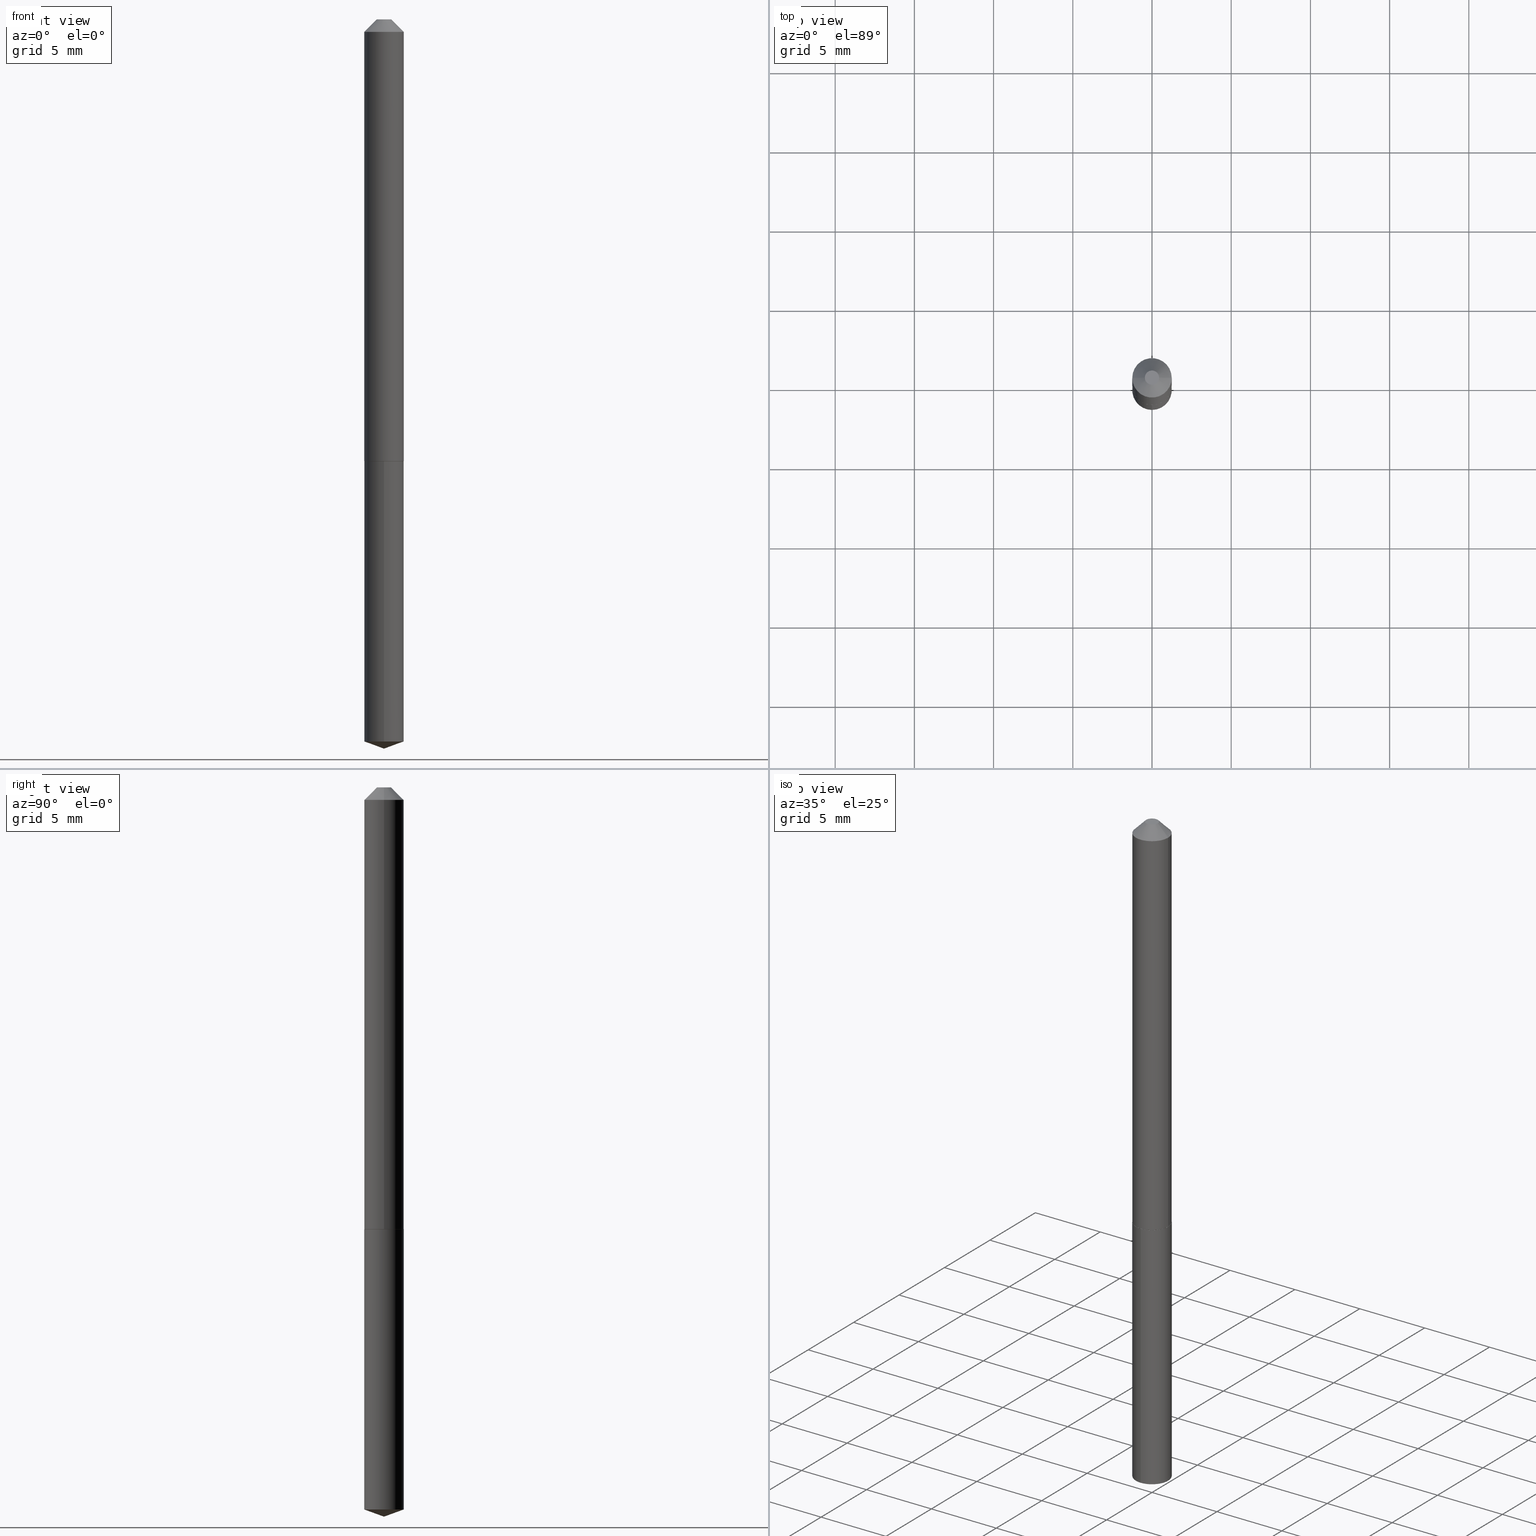
[diagram: canonical four-view strip — front | top / right | iso, engineering-drawing reading convention]
A machine part, canonical four-view strip (front | top / right | iso — engineering-drawing reading convention). The complete STEP part file that produces these views, byte-faithful:
ISO-10303-21;
HEADER;
FILE_DESCRIPTION (( 'STEP AP203' ),
    '1' );
FILE_NAME ('56249.STEP',
    '2024-04-22T21:28:00',
    ( '' ),
    ( '' ),
    'SwSTEP 2.0',
    'SolidWorks 2023',
    '' );
FILE_SCHEMA (( 'CONFIG_CONTROL_DESIGN' ));
ENDSEC;

DATA;
#1 = AXIS2_PLACEMENT_3D ( 'NONE', #103, #55, #222 ) ;
#2 = EDGE_LOOP ( 'NONE', ( #152, #374 ) ) ;
#3 = CARTESIAN_POINT ( 'NONE',  ( 0.04900000000000000883, -4.512739630454761261E-16, -0.03125000000000020123 ) ) ;
#4 = EDGE_CURVE ( 'NONE', #89, #259, #86, .T. ) ;
#5 = EDGE_CURVE ( 'NONE', #338, #325, #298, .T. ) ;
#6 = CC_DESIGN_APPROVAL ( #114, ( #116 ) ) ;
#7 = LINE ( 'NONE', #257, #104 ) ;
#8 = DESIGN_CONTEXT ( 'detailed design', #74, 'design' ) ;
#9 =( NAMED_UNIT ( * ) SI_UNIT ( $, .STERADIAN. ) SOLID_ANGLE_UNIT ( ) );
#10 = FACE_OUTER_BOUND ( 'NONE', #39, .T. ) ;
#11 = APPLICATION_PROTOCOL_DEFINITION ( 'international standard', 'config_control_design', 1994, #74 ) ;
#12 = APPROVAL_PERSON_ORGANIZATION ( #213, #14, #107 ) ;
#13 = MANIFOLD_SOLID_BREP ( 'Body-Move/Copy2[2]', #316 ) ;
#14 = APPROVAL ( #133, 'UNSPECIFIED' ) ;
#15 = ADVANCED_FACE ( 'NONE', ( #65 ), #112, .T. ) ;
#16 = CIRCLE ( 'NONE', #117, 0.04900000000000000883 ) ;
#17 = CIRCLE ( 'NONE', #136, 0.04900000000000000189 ) ;
#18 = CYLINDRICAL_SURFACE ( 'NONE', #118, 0.04900000000000000189 ) ;
#19 = CYLINDRICAL_SURFACE ( 'NONE', #364, 0.04900000000000007822 ) ;
#20 = LINE ( 'NONE', #140, #328 ) ;
#21 = LINE ( 'NONE', #143, #315 ) ;
#22 = DIRECTION ( 'NONE',  ( 0.7071067811865414665, -2.468850131082193557E-15, 0.7071067811865535679 ) ) ;
#23 = FACE_OUTER_BOUND ( 'NONE', #2, .T. ) ;
#24 = PERSON_AND_ORGANIZATION_ROLE ( 'creator' ) ;
#25 = AXIS2_PLACEMENT_3D ( 'NONE', #37, #96, #68 ) ;
#26 = ORIENTED_EDGE ( 'NONE', *, *, #184, .F. ) ;
#27 = CARTESIAN_POINT ( 'NONE',  ( 4.432429479653231355E-29, -6.328285197260437740E-15, -1.812500000000000222 ) ) ;
#28 = APPROVAL ( #60, 'UNSPECIFIED' ) ;
#29 = PERSON_AND_ORGANIZATION ( #228, #151 ) ;
#30 = AXIS2_PLACEMENT_3D ( 'NONE', #105, #134, #204 ) ;
#31 = PERSON_AND_ORGANIZATION ( #228, #151 ) ;
#32 = ORIENTED_EDGE ( 'NONE', *, *, #84, .F. ) ;
#33 = ORIENTED_EDGE ( 'NONE', *, *, #268, .F. ) ;
#34 = PERSON_AND_ORGANIZATION ( #228, #151 ) ;
#35 = DIRECTION ( 'NONE',  ( -2.445468806185136597E-29, 3.491481338843145583E-15, 1.000000000000000000 ) ) ;
#36 = DIRECTION ( 'NONE',  ( -1.000000000000000000, 6.982962677686265922E-15, -4.876176775795935793E-29 ) ) ;
#37 = CARTESIAN_POINT ( 'NONE',  ( 0.000000000000000000, 0.000000000000000000, 0.000000000000000000 ) ) ;
#38 = DIRECTION ( 'NONE',  ( 6.982962677686265922E-15, 1.000000000000000000, -3.491467695040241308E-15 ) ) ;
#39 = EDGE_LOOP ( 'NONE', ( #69, #115, #91 ) ) ;
#40 = PERSON_AND_ORGANIZATION_ROLE ( 'creator' ) ;
#41 = DIRECTION ( 'NONE',  ( -2.445478333601782701E-29, 3.491467695040241308E-15, 1.000000000000000000 ) ) ;
#42 = CIRCLE ( 'NONE', #87, 0.04900000000000014067 ) ;
#43 = CARTESIAN_POINT ( 'NONE',  ( -0.01775000000000000536, 1.785019834483547303E-16, -9.184850993710916437E-20 ) ) ;
#44 = FACE_OUTER_BOUND ( 'NONE', #119, .T. ) ;
#45 = CC_DESIGN_PERSON_AND_ORGANIZATION_ASSIGNMENT ( #340, #333, ( #362 ) ) ;
#46 = CC_DESIGN_DATE_AND_TIME_ASSIGNMENT ( #120, #219, ( #76 ) ) ;
#47 = ORIENTED_EDGE ( 'NONE', *, *, #110, .T. ) ;
#48 = VECTOR ( 'NONE', #95, 39.37007874015748143 ) ;
#49 = DIRECTION ( 'NONE',  ( -2.445468806185136597E-29, 3.491481338843145583E-15, 1.000000000000000000 ) ) ;
#50 = DATE_AND_TIME ( #131, #224 ) ;
#51 = ORIENTED_EDGE ( 'NONE', *, *, #53, .F. ) ;
#52 = EDGE_LOOP ( 'NONE', ( #308, #283 ) ) ;
#53 = EDGE_CURVE ( 'NONE', #360, #313, #92, .T. ) ;
#54 = EDGE_CURVE ( 'NONE', #128, #304, #66, .T. ) ;
#55 = DIRECTION ( 'NONE',  ( -2.445468806185136597E-29, 3.491481338843145583E-15, 1.000000000000000000 ) ) ;
#56 = ORIENTED_EDGE ( 'NONE', *, *, #191, .T. ) ;
#57 = ORIENTED_EDGE ( 'NONE', *, *, #299, .F. ) ;
#58 = CYLINDRICAL_SURFACE ( 'NONE', #177, 0.04900000000000000189 ) ;
#59 = CONICAL_SURFACE ( 'NONE', #389, 108.1684023407369466, 1.221730476396041931 ) ;
#60 = APPROVAL_STATUS ( 'not_yet_approved' ) ;
#61 = DIRECTION ( 'NONE',  ( -6.982962677686265922E-15, -1.000000000000000000, 5.575199987069924823E-15 ) ) ;
#62 = COORDINATED_UNIVERSAL_TIME_OFFSET ( 5, 0, .BEHIND. ) ;
#63 = CARTESIAN_POINT ( 'NONE',  ( 4.388805033773031542E-29, -6.266031452726091394E-15, -1.794665458520956935 ) ) ;
#64 = DIRECTION ( 'NONE',  ( 2.438088387897960049E-29, -3.491481338843145188E-15, -1.000000000000000000 ) ) ;
#65 = FACE_OUTER_BOUND ( 'NONE', #358, .T. ) ;
#66 = CIRCLE ( 'NONE', #206, 0.01775000000000000189 ) ;
#67 = AXIS2_PLACEMENT_3D ( 'NONE', #63, #155, #61 ) ;
#68 = DIRECTION ( 'NONE',  ( 1.000000000000000000, 0.000000000000000000, 0.000000000000000000 ) ) ;
#69 = ORIENTED_EDGE ( 'NONE', *, *, #173, .F. ) ;
#70 = CARTESIAN_POINT ( 'NONE',  ( -3.421651712065830464E-16, -0.04900000000000625383, -1.794665458520956491 ) ) ;
#71 = PERSON_AND_ORGANIZATION ( #228, #151 ) ;
#72 = DIRECTION ( 'NONE',  ( -2.445468806185136597E-29, 3.491481338843145583E-15, 1.000000000000000000 ) ) ;
#73 = LINE ( 'NONE', #324, #217 ) ;
#74 = APPLICATION_CONTEXT ( 'configuration controlled 3d designs of mechanical parts and assemblies' ) ;
#75 = EDGE_CURVE ( 'NONE', #327, #221, #243, .T. ) ;
#76 = SECURITY_CLASSIFICATION ( '', '', #335 ) ;
#77 = DIRECTION ( 'NONE',  ( -6.982962677686265922E-15, -1.000000000000000000, 2.787599993534962411E-15 ) ) ;
#78 = DIRECTION ( 'NONE',  ( -2.445478333601782701E-29, 3.491467695040241308E-15, 1.000000000000000000 ) ) ;
#79 = PRODUCT_DEFINITION_SHAPE ( 'NONE', 'NONE',  #116 ) ;
#80 = CYLINDRICAL_SURFACE ( 'NONE', #278, 0.04900000000000007822 ) ;
#81 = CARTESIAN_POINT ( 'NONE',  ( 4.388805033773031542E-29, -6.266031452726091394E-15, -1.794665458520956935 ) ) ;
#82 = LINE ( 'NONE', #205, #193 ) ;
#83 = CARTESIAN_POINT ( 'NONE',  ( 1.123063329716002131E-48, -1.603436792211371783E-34, -4.592425496802593247E-20 ) ) ;
#84 = EDGE_CURVE ( 'NONE', #89, #309, #20, .T. ) ;
#85 = AXIS2_PLACEMENT_3D ( 'NONE', #336, #108, #242 ) ;
#86 = CIRCLE ( 'NONE', #160, 0.04850000000000011247 ) ;
#87 = AXIS2_PLACEMENT_3D ( 'NONE', #198, #359, #233 ) ;
#88 = ORIENTED_EDGE ( 'NONE', *, *, #53, .T. ) ;
#89 = VERTEX_POINT ( 'NONE', #157 ) ;
#90 =( NAMED_UNIT ( * ) PLANE_ANGLE_UNIT ( ) SI_UNIT ( $, .RADIAN. ) );
#91 = ORIENTED_EDGE ( 'NONE', *, *, #191, .F. ) ;
#92 = CIRCLE ( 'NONE', #236, 0.04900000000000000189 ) ;
#93 = CIRCLE ( 'NONE', #67, 0.04900000000000000189 ) ;
#94 = DIRECTION ( 'NONE',  ( -2.445468806185136877E-29, 3.491481338843145188E-15, 1.000000000000000000 ) ) ;
#95 = DIRECTION ( 'NONE',  ( -6.561838499445227673E-15, -0.9396926207859109814, 0.3420201433256614409 ) ) ;
#96 = DIRECTION ( 'NONE',  ( 0.000000000000000000, 0.000000000000000000, 1.000000000000000000 ) ) ;
#97 = ADVANCED_FACE ( 'NONE', ( #194 ), #58, .T. ) ;
#98 = ORIENTED_EDGE ( 'NONE', *, *, #201, .F. ) ;
#99 = VECTOR ( 'NONE', #94, 39.37007874015748143 ) ;
#100 = DIRECTION ( 'NONE',  ( 2.445478333601782420E-29, -3.491467695040241308E-15, -1.000000000000000000 ) ) ;
#101 = ADVANCED_FACE ( 'NONE', ( #380 ), #266, .F. ) ;
#102 = DIRECTION ( 'NONE',  ( -2.445468806185136597E-29, 3.491481338843145583E-15, 1.000000000000000000 ) ) ;
#103 = CARTESIAN_POINT ( 'NONE',  ( 2.246126659432004262E-48, -3.206873584422743567E-34, -9.184850993605186494E-20 ) ) ;
#104 = VECTOR ( 'NONE', #372, 39.37007874015748143 ) ;
#105 = CARTESIAN_POINT ( 'NONE',  ( 7.642090019328601786E-31, -1.091087918388490144E-16, -0.03125000000000020123 ) ) ;
#106 = DIRECTION ( 'NONE',  ( 1.000000000000000000, -6.982962677686267499E-15, 4.876164886021178738E-29 ) ) ;
#107 = APPROVAL_ROLE ( '' ) ;
#108 = DIRECTION ( 'NONE',  ( -2.445468806185136597E-29, 3.491481338843145583E-15, 1.000000000000000000 ) ) ;
#109 = APPROVAL_DATE_TIME ( #50, #28 ) ;
#110 = EDGE_CURVE ( 'NONE', #309, #181, #73, .T. ) ;
#111 = LENGTH_MEASURE_WITH_UNIT ( LENGTH_MEASURE( 0.02539999999999999897 ), #179 );
#112 = CONICAL_SURFACE ( 'NONE', #250, 0.04900000000000000883, 0.7853981633974452814 ) ;
#113 = LOCAL_TIME ( 17, 28, 0.000000000000000000, #256 ) ;
#114 = APPROVAL ( #130, 'UNSPECIFIED' ) ;
#115 = ORIENTED_EDGE ( 'NONE', *, *, #75, .T. ) ;
#116 = PRODUCT_DEFINITION ( 'UNKNOWN', '', #255, #8 ) ;
#117 = AXIS2_PLACEMENT_3D ( 'NONE', #186, #182, #344 ) ;
#118 = AXIS2_PLACEMENT_3D ( 'NONE', #262, #232, #369 ) ;
#119 = EDGE_LOOP ( 'NONE', ( #124, #230, #57, #32 ) ) ;
#120 = DATE_AND_TIME ( #147, #238 ) ;
#121 = ORIENTED_EDGE ( 'NONE', *, *, #366, .F. ) ;
#122 = PLANE ( 'NONE',  #381 ) ;
#123 = AXIS2_PLACEMENT_3D ( 'NONE', #275, #72, #323 ) ;
#124 = ORIENTED_EDGE ( 'NONE', *, *, #4, .T. ) ;
#125 = LINE ( 'NONE', #373, #261 ) ;
#126 = ADVANCED_FACE ( 'NONE', ( #44 ), #272, .T. ) ;
#127 = EDGE_CURVE ( 'NONE', #304, #325, #82, .T. ) ;
#128 = VERTEX_POINT ( 'NONE', #331 ) ;
#129 = CARTESIAN_POINT ( 'NONE',  ( 2.683902014788188043E-29, -3.831900769380352584E-15, -1.097500000000000142 ) ) ;
#130 = APPROVAL_STATUS ( 'not_yet_approved' ) ;
#131 = CALENDAR_DATE ( 2024, 22, 4 ) ;
#132 = DIRECTION ( 'NONE',  ( -6.982962677686265922E-15, -1.000000000000000000, 5.575199987069924823E-15 ) ) ;
#133 = APPROVAL_STATUS ( 'not_yet_approved' ) ;
#134 = DIRECTION ( 'NONE',  ( 2.445468806185136597E-29, -3.491481338843145583E-15, -1.000000000000000000 ) ) ;
#135 = EDGE_LOOP ( 'NONE', ( #352, #88 ) ) ;
#136 = AXIS2_PLACEMENT_3D ( 'NONE', #326, #235, #329 ) ;
#137 = CC_DESIGN_APPROVAL ( #28, ( #76 ) ) ;
#138 = CARTESIAN_POINT ( 'NONE',  ( -0.04850000000000011247, -3.486384056032013595E-15, -1.098000000000000087 ) ) ;
#139 = CC_DESIGN_PERSON_AND_ORGANIZATION_ASSIGNMENT ( #29, #311, ( #255 ) ) ;
#140 = CARTESIAN_POINT ( 'NONE',  ( 0.04900000000000014067, -4.174065940586980694E-15, -1.097500000000000142 ) ) ;
#141 = DIRECTION ( 'NONE',  ( 1.000000000000000000, -6.982962677686266711E-15, 0.000000000000000000 ) ) ;
#142 = CARTESIAN_POINT ( 'NONE',  ( 3.481659405224759258E-16, 0.04899999999999617162, -1.098000000000000309 ) ) ;
#143 = CARTESIAN_POINT ( 'NONE',  ( 0.04900000000000000883, -4.452731937296541456E-16, -0.03125000000000020123 ) ) ;
#144 = UNCERTAINTY_MEASURE_WITH_UNIT (LENGTH_MEASURE( 1.000000000000000082E-05 ), #209, 'distance_accuracy_value', 'NONE');
#145 = ORIENTED_EDGE ( 'NONE', *, *, #249, .T. ) ;
#146 = CIRCLE ( 'NONE', #123, 0.04900000000000000883 ) ;
#147 = CALENDAR_DATE ( 2024, 22, 4 ) ;
#148 = ORIENTED_EDGE ( 'NONE', *, *, #5, .T. ) ;
#149 = EDGE_LOOP ( 'NONE', ( #26, #387, #319, #98 ) ) ;
#150 = DIRECTION ( 'NONE',  ( 1.000000000000000000, -6.982962677686262766E-15, 0.000000000000000000 ) ) ;
#151 = ORGANIZATION ( 'UNSPECIFIED', 'UNSPECIFIED', '' ) ;
#152 = ORIENTED_EDGE ( 'NONE', *, *, #318, .T. ) ;
#153 = PERSON_AND_ORGANIZATION_ROLE ( 'classification_officer' ) ;
#154 = ORIENTED_EDGE ( 'NONE', *, *, #75, .F. ) ;
#155 = DIRECTION ( 'NONE',  ( -2.445478333601782701E-29, 3.491467695040241308E-15, 1.000000000000000000 ) ) ;
#156 = EDGE_LOOP ( 'NONE', ( #378, #254, #280, #51 ) ) ;
#157 = CARTESIAN_POINT ( 'NONE',  ( 0.04850000000000011247, -4.172320199917559190E-15, -1.098000000000000087 ) ) ;
#158 = CARTESIAN_POINT ( 'NONE',  ( 2.683902014788188043E-29, -3.831900769380352584E-15, -1.097500000000000142 ) ) ;
#159 = DIRECTION ( 'NONE',  ( -2.445478333601782701E-29, 3.491467695040241308E-15, 1.000000000000000000 ) ) ;
#160 = AXIS2_PLACEMENT_3D ( 'NONE', #320, #102, #295 ) ;
#161 = EDGE_CURVE ( 'NONE', #128, #181, #21, .T. ) ;
#162 = COORDINATED_UNIVERSAL_TIME_OFFSET ( 5, 0, .BEHIND. ) ;
#163 = DIRECTION ( 'NONE',  ( 2.445468806185136597E-29, -3.491481338843145583E-15, -1.000000000000000000 ) ) ;
#164 = ORIENTED_EDGE ( 'NONE', *, *, #127, .F. ) ;
#165 = DIRECTION ( 'NONE',  ( -6.982962677686267499E-15, -1.000000000000000000, 3.475157955500608196E-15 ) ) ;
#166 = DIRECTION ( 'NONE',  ( -2.445468806185136877E-29, 3.491481338843145188E-15, 1.000000000000000000 ) ) ;
#167 = ORIENTED_EDGE ( 'NONE', *, *, #303, .T. ) ;
#168 = CALENDAR_DATE ( 2024, 22, 4 ) ;
#169 = CLOSED_SHELL ( 'NONE', ( #97, #356, #307, #190, #101 ) ) ;
#170 = CC_DESIGN_APPROVAL ( #14, ( #255 ) ) ;
#171 = EDGE_CURVE ( 'NONE', #325, #181, #16, .T. ) ;
#172 = FACE_OUTER_BOUND ( 'NONE', #284, .T. ) ;
#173 = EDGE_CURVE ( 'NONE', #327, #377, #285, .T. ) ;
#174 = AXIS2_PLACEMENT_3D ( 'NONE', #227, #159, #165 ) ;
#175 = DIRECTION ( 'NONE',  ( 6.676917655467994950E-15, 0.9396926207859134239, 0.3420201433256548906 ) ) ;
#176 = CARTESIAN_POINT ( 'NONE',  ( 2.246126659432004262E-48, -3.206873584422743567E-34, -9.184850993605186494E-20 ) ) ;
#177 = AXIS2_PLACEMENT_3D ( 'NONE', #187, #264, #77 ) ;
#178 = APPROVAL_DATE_TIME ( #185, #14 ) ;
#179 =( LENGTH_UNIT ( ) NAMED_UNIT ( * ) SI_UNIT ( $, .METRE. ) );
#180 = CARTESIAN_POINT ( 'NONE',  ( -0.04900000000000000883, -1.622338840087150061E-15, -0.03125000000000020123 ) ) ;
#181 = VERTEX_POINT ( 'NONE', #3 ) ;
#182 = DIRECTION ( 'NONE',  ( -2.445468806185136597E-29, 3.491481338843145583E-15, 1.000000000000000000 ) ) ;
#183 = ORIENTED_EDGE ( 'NONE', *, *, #110, .F. ) ;
#184 = EDGE_CURVE ( 'NONE', #259, #338, #125, .T. ) ;
#185 = DATE_AND_TIME ( #341, #218 ) ;
#186 = CARTESIAN_POINT ( 'NONE',  ( 7.642090019328601786E-31, -1.091087918388490144E-16, -0.03125000000000020123 ) ) ;
#187 = CARTESIAN_POINT ( 'NONE',  ( 2.685124749191280284E-29, -3.833646510049774087E-15, -1.098000000000000087 ) ) ;
#188 = APPROVAL_ROLE ( '' ) ;
#189 = FACE_OUTER_BOUND ( 'NONE', #52, .T. ) ;
#190 = ADVANCED_FACE ( 'NONE', ( #312 ), #18, .T. ) ;
#191 = EDGE_CURVE ( 'NONE', #377, #221, #93, .T. ) ;
#192 = APPROVAL_DATE_TIME ( #263, #114 ) ;
#193 = VECTOR ( 'NONE', #208, 39.37007874015748143 ) ;
#194 = FACE_OUTER_BOUND ( 'NONE', #225, .T. ) ;
#195 = ORIENTED_EDGE ( 'NONE', *, *, #127, .T. ) ;
#196 = FACE_OUTER_BOUND ( 'NONE', #332, .T. ) ;
#197 = DIRECTION ( 'NONE',  ( -2.445478333601782701E-29, 3.491467695040241308E-15, 1.000000000000000000 ) ) ;
#198 = CARTESIAN_POINT ( 'NONE',  ( 2.683902014788188043E-29, -3.831900769380352584E-15, -1.097500000000000142 ) ) ;
#199 = LOCAL_TIME ( 17, 28, 0.000000000000000000, #162 ) ;
#200 = DATE_AND_TIME ( #168, #199 ) ;
#201 = EDGE_CURVE ( 'NONE', #338, #309, #207, .T. ) ;
#202 = DIRECTION ( 'NONE',  ( -2.445478333601782701E-29, 3.491467695040241308E-15, 1.000000000000000000 ) ) ;
#203 = EDGE_LOOP ( 'NONE', ( #279, #342, #47, #386 ) ) ;
#204 = DIRECTION ( 'NONE',  ( -1.000000000000000000, 6.982962677686267499E-15, 0.000000000000000000 ) ) ;
#205 = CARTESIAN_POINT ( 'NONE',  ( -0.04900000000000000883, 2.330563793677781220E-16, -0.03125000000000020123 ) ) ;
#206 = AXIS2_PLACEMENT_3D ( 'NONE', #176, #271, #106 ) ;
#207 = CIRCLE ( 'NONE', #310, 0.04900000000000014067 ) ;
#208 = DIRECTION ( 'NONE',  ( -0.7071067811865453523, 2.468850131082234184E-15, -0.7071067811865496822 ) ) ;
#209 =( CONVERSION_BASED_UNIT ( 'INCH', #111 ) LENGTH_UNIT ( ) NAMED_UNIT ( #211 ) );
#210 = DIRECTION ( 'NONE',  ( -6.982962677686265922E-15, -1.000000000000000000, 2.787599993534962411E-15 ) ) ;
#211 = DIMENSIONAL_EXPONENTS ( 1.000000000000000000, 0.000000000000000000, 0.000000000000000000, 0.000000000000000000, 0.000000000000000000, 0.000000000000000000, 0.000000000000000000 ) ;
#212 = MANIFOLD_SOLID_BREP ( 'Body-Move/Copy2[1]', #169 ) ;
#213 = PERSON_AND_ORGANIZATION ( #228, #151 ) ;
#214 = ORIENTED_EDGE ( 'NONE', *, *, #299, .T. ) ;
#215 = DIRECTION ( 'NONE',  ( -2.438088387897960049E-29, 3.491481338843145188E-15, 1.000000000000000000 ) ) ;
#216 = FACE_OUTER_BOUND ( 'NONE', #337, .T. ) ;
#217 = VECTOR ( 'NONE', #166, 39.37007874015748143 ) ;
#218 = LOCAL_TIME ( 17, 28, 0.000000000000000000, #357 ) ;
#219 = DATE_TIME_ROLE ( 'classification_date' ) ;
#220 = CC_DESIGN_PERSON_AND_ORGANIZATION_ASSIGNMENT ( #31, #153, ( #76 ) ) ;
#221 = VERTEX_POINT ( 'NONE', #288 ) ;
#222 = DIRECTION ( 'NONE',  ( 1.000000000000000000, -6.982962677686267499E-15, 4.876164886021178738E-29 ) ) ;
#223 = DIRECTION ( 'NONE',  ( -0.7071067811865414665, 7.493145998870332072E-15, 0.7071067811865535679 ) ) ;
#224 = LOCAL_TIME ( 17, 28, 0.000000000000000000, #62 ) ;
#225 = EDGE_LOOP ( 'NONE', ( #56, #145, #367, #121 ) ) ;
#226 = APPLICATION_PROTOCOL_DEFINITION ( 'international standard', 'config_control_design', 1994, #286 ) ;
#227 = CARTESIAN_POINT ( 'NONE',  ( -9.184625553270153333E-28, 1.311310578942944224E-13, 37.55757874015748143 ) ) ;
#228 = PERSON ( 'UNSPECIFIED', 'UNSPECIFIED', 'UNSPECIFIED', ('UNSPECIFIED'), ('UNSPECIFIED'), ('UNSPECIFIED') ) ;
#229 = DIRECTION ( 'NONE',  ( -1.000000000000000000, 6.982962677686267499E-15, 0.000000000000000000 ) ) ;
#230 = ORIENTED_EDGE ( 'NONE', *, *, #184, .T. ) ;
#231 = CC_DESIGN_SECURITY_CLASSIFICATION ( #76, ( #255 ) ) ;
#232 = DIRECTION ( 'NONE',  ( -2.445478333601782701E-29, 3.491467695040241308E-15, 1.000000000000000000 ) ) ;
#233 = DIRECTION ( 'NONE',  ( 1.000000000000000000, -6.982962677686262766E-15, 0.000000000000000000 ) ) ;
#234 = CARTESIAN_POINT ( 'NONE',  ( -0.04900000000000007822, 3.481659405224496468E-16, -2.410278194224907734E-30 ) ) ;
#235 = DIRECTION ( 'NONE',  ( -2.445478333601782701E-29, 3.491467695040241308E-15, 1.000000000000000000 ) ) ;
#236 = AXIS2_PLACEMENT_3D ( 'NONE', #349, #197, #210 ) ;
#237 = CC_DESIGN_PERSON_AND_ORGANIZATION_ASSIGNMENT ( #71, #40, ( #116 ) ) ;
#238 = LOCAL_TIME ( 17, 28, 0.000000000000000000, #247 ) ;
#239 = ADVANCED_FACE ( 'NONE', ( #189 ), #122, .F. ) ;
#240 = DIRECTION ( 'NONE',  ( 1.000000000000000000, -6.982962677686265922E-15, 4.876176775795935793E-29 ) ) ;
#241 = CARTESIAN_POINT ( 'NONE',  ( 4.432429663116289476E-29, -6.328285197260439317E-15, -1.812500000000000222 ) ) ;
#242 = DIRECTION ( 'NONE',  ( 1.000000000000000000, -6.982962677686262766E-15, 0.000000000000000000 ) ) ;
#243 = LINE ( 'NONE', #241, #347 ) ;
#244 = DIRECTION ( 'NONE',  ( 1.000000000000000000, -6.982962677686266711E-15, 4.876176775795936353E-29 ) ) ;
#245 = DATE_TIME_ROLE ( 'creation_date' ) ;
#246 = CONICAL_SURFACE ( 'NONE', #289, 0.04900000000000014067, 0.7853981633974397303 ) ;
#247 = COORDINATED_UNIVERSAL_TIME_OFFSET ( 5, 0, .BEHIND. ) ;
#248 = ORIENTED_EDGE ( 'NONE', *, *, #303, .F. ) ;
#249 = EDGE_CURVE ( 'NONE', #221, #360, #355, .T. ) ;
#250 = AXIS2_PLACEMENT_3D ( 'NONE', #258, #163, #229 ) ;
#251 = CIRCLE ( 'NONE', #330, 0.04900000000000000189 ) ;
#252 = CC_DESIGN_DATE_AND_TIME_ASSIGNMENT ( #200, #245, ( #116 ) ) ;
#253 = ORIENTED_EDGE ( 'NONE', *, *, #161, .F. ) ;
#254 = ORIENTED_EDGE ( 'NONE', *, *, #268, .T. ) ;
#255 = PRODUCT_DEFINITION_FORMATION_WITH_SPECIFIED_SOURCE ( 'ANY', '', #362, .NOT_KNOWN. ) ;
#256 = COORDINATED_UNIVERSAL_TIME_OFFSET ( 5, 0, .BEHIND. ) ;
#257 = CARTESIAN_POINT ( 'NONE',  ( -3.421651712066001549E-16, -0.04900000000000383216, -1.098000000000000087 ) ) ;
#258 = CARTESIAN_POINT ( 'NONE',  ( 7.642090019328601786E-31, -1.091087918388490144E-16, -0.03125000000000020123 ) ) ;
#259 = VERTEX_POINT ( 'NONE', #138 ) ;
#260 = DIRECTION ( 'NONE',  ( -2.445468806185136597E-29, 3.491481338843145583E-15, 1.000000000000000000 ) ) ;
#261 = VECTOR ( 'NONE', #223, 39.37007874015748143 ) ;
#262 = CARTESIAN_POINT ( 'NONE',  ( 2.685124749191280284E-29, -3.833646510049774087E-15, -1.098000000000000087 ) ) ;
#263 = DATE_AND_TIME ( #294, #113 ) ;
#264 = DIRECTION ( 'NONE',  ( -2.445478333601782701E-29, 3.491467695040241308E-15, 1.000000000000000000 ) ) ;
#265 = DIRECTION ( 'NONE',  ( -6.982962677686267499E-15, -1.000000000000000000, 3.475157955500608196E-15 ) ) ;
#266 = PLANE ( 'NONE',  #287 ) ;
#267 = PERSON_AND_ORGANIZATION ( #228, #151 ) ;
#268 = EDGE_CURVE ( 'NONE', #221, #377, #251, .T. ) ;
#269 = CARTESIAN_POINT ( 'NONE',  ( 0.04900000000000014067, -4.174065940586980694E-15, -1.097500000000000142 ) ) ;
#270 = EDGE_CURVE ( 'NONE', #313, #360, #17, .T. ) ;
#271 = DIRECTION ( 'NONE',  ( -2.445468806185136597E-29, 3.491481338843145583E-15, 1.000000000000000000 ) ) ;
#272 = CONICAL_SURFACE ( 'NONE', #85, 0.04900000000000014067, 0.7853981633974397303 ) ;
#273 = AXIS2_PLACEMENT_3D ( 'NONE', #83, #64, #36 ) ;
#274 = CARTESIAN_POINT ( 'NONE',  ( 0.000000000000000000, 0.000000000000000000, 0.000000000000000000 ) ) ;
#275 = CARTESIAN_POINT ( 'NONE',  ( 7.642090019328601786E-31, -1.091087918388490144E-16, -0.03125000000000020123 ) ) ;
#276 = DIRECTION ( 'NONE',  ( 0.7071067811865453523, -7.319954787623248157E-15, -0.7071067811865496822 ) ) ;
#277 = SHAPE_DEFINITION_REPRESENTATION ( #79, #385 ) ;
#278 = AXIS2_PLACEMENT_3D ( 'NONE', #390, #49, #244 ) ;
#279 = ORIENTED_EDGE ( 'NONE', *, *, #5, .F. ) ;
#280 = ORIENTED_EDGE ( 'NONE', *, *, #366, .T. ) ;
#281 = PRODUCT_RELATED_PRODUCT_CATEGORY ( 'detail', '', ( #362 ) ) ;
#282 = ADVANCED_FACE ( 'NONE', ( #172 ), #322, .T. ) ;
#283 = ORIENTED_EDGE ( 'NONE', *, *, #383, .F. ) ;
#284 = EDGE_LOOP ( 'NONE', ( #382, #350, #167, #164 ) ) ;
#285 = LINE ( 'NONE', #290, #48 ) ;
#286 = APPLICATION_CONTEXT ( 'configuration controlled 3d designs of mechanical parts and assemblies' ) ;
#287 = AXIS2_PLACEMENT_3D ( 'NONE', #351, #100, #38 ) ;
#288 = CARTESIAN_POINT ( 'NONE',  ( 3.481659405224928370E-16, 0.04899999999999372913, -1.794665458520957158 ) ) ;
#289 = AXIS2_PLACEMENT_3D ( 'NONE', #129, #260, #375 ) ;
#290 = CARTESIAN_POINT ( 'NONE',  ( 4.432408557446276664E-29, -6.328315159051615973E-15, -1.812500000000000222 ) ) ;
#291 = MECHANICAL_CONTEXT ( 'NONE', #286, 'mechanical' ) ;
#292 = ORIENTED_EDGE ( 'NONE', *, *, #173, .T. ) ;
#293 = ADVANCED_FACE ( 'NONE', ( #300 ), #19, .T. ) ;
#294 = CALENDAR_DATE ( 2024, 22, 4 ) ;
#295 = DIRECTION ( 'NONE',  ( 1.000000000000000000, -6.982962677686266711E-15, 0.000000000000000000 ) ) ;
#296 = AXIS2_PLACEMENT_3D ( 'NONE', #388, #301, #141 ) ;
#297 = APPROVAL_ROLE ( '' ) ;
#298 = LINE ( 'NONE', #234, #99 ) ;
#299 = EDGE_CURVE ( 'NONE', #309, #338, #42, .T. ) ;
#300 = FACE_OUTER_BOUND ( 'NONE', #203, .T. ) ;
#301 = DIRECTION ( 'NONE',  ( -2.445468806185136597E-29, 3.491481338843145583E-15, 1.000000000000000000 ) ) ;
#302 = DIRECTION ( 'NONE',  ( 1.000000000000000000, -6.982962677686266711E-15, 4.876176775795936353E-29 ) ) ;
#303 = EDGE_CURVE ( 'NONE', #181, #325, #146, .T. ) ;
#304 = VERTEX_POINT ( 'NONE', #43 ) ;
#305 = PERSON_AND_ORGANIZATION ( #228, #151 ) ;
#306 = VECTOR ( 'NONE', #78, 39.37007874015748143 ) ;
#307 = ADVANCED_FACE ( 'NONE', ( #196 ), #59, .T. ) ;
#308 = ORIENTED_EDGE ( 'NONE', *, *, #4, .F. ) ;
#309 = VERTEX_POINT ( 'NONE', #269 ) ;
#310 = AXIS2_PLACEMENT_3D ( 'NONE', #158, #35, #150 ) ;
#311 = PERSON_AND_ORGANIZATION_ROLE ( 'design_supplier' ) ;
#312 = FACE_OUTER_BOUND ( 'NONE', #156, .T. ) ;
#313 = VERTEX_POINT ( 'NONE', #379 ) ;
#314 = ORIENTED_EDGE ( 'NONE', *, *, #171, .T. ) ;
#315 = VECTOR ( 'NONE', #276, 39.37007874015748143 ) ;
#316 = CLOSED_SHELL ( 'NONE', ( #282, #384, #126, #239, #371, #293, #15, #334 ) ) ;
#317 = APPROVAL_PERSON_ORGANIZATION ( #267, #28, #188 ) ;
#318 = EDGE_CURVE ( 'NONE', #304, #128, #348, .T. ) ;
#319 = ORIENTED_EDGE ( 'NONE', *, *, #84, .T. ) ;
#320 = CARTESIAN_POINT ( 'NONE',  ( 2.685124749191280284E-29, -3.833646510049774087E-15, -1.098000000000000087 ) ) ;
#321 = CARTESIAN_POINT ( 'NONE',  ( -9.184625553270153333E-28, 1.311310578942944224E-13, 37.55757874015748143 ) ) ;
#322 = CONICAL_SURFACE ( 'NONE', #30, 0.04900000000000000883, 0.7853981633974452814 ) ;
#323 = DIRECTION ( 'NONE',  ( 1.000000000000000000, -6.982962677686267499E-15, 0.000000000000000000 ) ) ;
#324 = CARTESIAN_POINT ( 'NONE',  ( 0.04900000000000007822, -3.421651712066276171E-16, 2.389326620140012644E-30 ) ) ;
#325 = VERTEX_POINT ( 'NONE', #180 ) ;
#326 = CARTESIAN_POINT ( 'NONE',  ( 2.685124749191280284E-29, -3.833646510049774087E-15, -1.098000000000000087 ) ) ;
#327 = VERTEX_POINT ( 'NONE', #27 ) ;
#328 = VECTOR ( 'NONE', #22, 39.37007874015748143 ) ;
#329 = DIRECTION ( 'NONE',  ( -6.982962677686265922E-15, -1.000000000000000000, 2.787599993534962411E-15 ) ) ;
#331 = CARTESIAN_POINT ( 'NONE',  ( 0.01775000000000000536, -2.835235165950494639E-16, -9.184850993462789252E-20 ) ) ;
#330 = AXIS2_PLACEMENT_3D ( 'NONE', #81, #202, #132 ) ;
#332 = EDGE_LOOP ( 'NONE', ( #154, #292, #33 ) ) ;
#333 = PERSON_AND_ORGANIZATION_ROLE ( 'design_owner' ) ;
#334 = ADVANCED_FACE ( 'NONE', ( #23 ), #361, .F. ) ;
#335 = SECURITY_CLASSIFICATION_LEVEL ( 'unclassified' ) ;
#336 = CARTESIAN_POINT ( 'NONE',  ( 2.683902014788188043E-29, -3.831900769380352584E-15, -1.097500000000000142 ) ) ;
#337 = EDGE_LOOP ( 'NONE', ( #214, #148, #248, #183 ) ) ;
#338 = VERTEX_POINT ( 'NONE', #370 ) ;
#339 = CONICAL_SURFACE ( 'NONE', #174, 108.1684023407369466, 1.221730476396041931 ) ;
#340 = PERSON_AND_ORGANIZATION ( #228, #151 ) ;
#341 = CALENDAR_DATE ( 2024, 22, 4 ) ;
#342 = ORIENTED_EDGE ( 'NONE', *, *, #201, .T. ) ;
#343 = CARTESIAN_POINT ( 'NONE',  ( 3.481659405224930342E-16, 0.04899999999999615774, -1.098000000000000309 ) ) ;
#344 = DIRECTION ( 'NONE',  ( 1.000000000000000000, -6.982962677686267499E-15, 0.000000000000000000 ) ) ;
#345 = CC_DESIGN_PERSON_AND_ORGANIZATION_ASSIGNMENT ( #305, #24, ( #255 ) ) ;
#346 = FACE_OUTER_BOUND ( 'NONE', #149, .T. ) ;
#347 = VECTOR ( 'NONE', #175, 39.37007874015748143 ) ;
#348 = CIRCLE ( 'NONE', #1, 0.01775000000000000189 ) ;
#349 = CARTESIAN_POINT ( 'NONE',  ( 2.685124749191280284E-29, -3.833646510049774087E-15, -1.098000000000000087 ) ) ;
#350 = ORIENTED_EDGE ( 'NONE', *, *, #161, .T. ) ;
#351 = CARTESIAN_POINT ( 'NONE',  ( 2.685124749191280284E-29, -3.833646510049774087E-15, -1.098000000000000087 ) ) ;
#352 = ORIENTED_EDGE ( 'NONE', *, *, #270, .T. ) ;
#353 = DIRECTION ( 'NONE',  ( -2.445468806185136597E-29, 3.491481338843145583E-15, 1.000000000000000000 ) ) ;
#354 = CIRCLE ( 'NONE', #296, 0.04850000000000011247 ) ;
#355 = LINE ( 'NONE', #142, #306 ) ;
#356 = ADVANCED_FACE ( 'NONE', ( #10 ), #339, .T. ) ;
#357 = COORDINATED_UNIVERSAL_TIME_OFFSET ( 5, 0, .BEHIND. ) ;
#358 = EDGE_LOOP ( 'NONE', ( #253, #365, #195, #314 ) ) ;
#359 = DIRECTION ( 'NONE',  ( -2.445468806185136597E-29, 3.491481338843145583E-15, 1.000000000000000000 ) ) ;
#360 = VERTEX_POINT ( 'NONE', #343 ) ;
#361 = PLANE ( 'NONE',  #273 ) ;
#362 = PRODUCT ( '56249', '56249', '', ( #291 ) ) ;
#363 =( GEOMETRIC_REPRESENTATION_CONTEXT ( 3 ) GLOBAL_UNCERTAINTY_ASSIGNED_CONTEXT ( ( #144 ) ) GLOBAL_UNIT_ASSIGNED_CONTEXT ( ( #209, #90, #9 ) ) REPRESENTATION_CONTEXT ( 'NONE', 'WORKASPACE' ) );
#364 = AXIS2_PLACEMENT_3D ( 'NONE', #274, #353, #302 ) ;
#365 = ORIENTED_EDGE ( 'NONE', *, *, #318, .F. ) ;
#366 = EDGE_CURVE ( 'NONE', #377, #313, #7, .T. ) ;
#367 = ORIENTED_EDGE ( 'NONE', *, *, #270, .F. ) ;
#368 = CARTESIAN_POINT ( 'NONE',  ( 2.685124749191280284E-29, -3.833646510049774087E-15, -1.098000000000000087 ) ) ;
#369 = DIRECTION ( 'NONE',  ( -6.982962677686265922E-15, -1.000000000000000000, 2.787599993534962411E-15 ) ) ;
#370 = CARTESIAN_POINT ( 'NONE',  ( -0.04900000000000014067, -3.483734828857902394E-15, -1.097500000000000142 ) ) ;
#371 = ADVANCED_FACE ( 'NONE', ( #346 ), #246, .T. ) ;
#372 = DIRECTION ( 'NONE',  ( -2.445478333601782701E-29, 3.491467695040241308E-15, 1.000000000000000000 ) ) ;
#373 = CARTESIAN_POINT ( 'NONE',  ( -0.04900000000000014067, -3.483734828857902394E-15, -1.097500000000000142 ) ) ;
#374 = ORIENTED_EDGE ( 'NONE', *, *, #54, .T. ) ;
#375 = DIRECTION ( 'NONE',  ( 1.000000000000000000, -6.982962677686262766E-15, 0.000000000000000000 ) ) ;
#376 = APPROVAL_PERSON_ORGANIZATION ( #34, #114, #297 ) ;
#377 = VERTEX_POINT ( 'NONE', #70 ) ;
#378 = ORIENTED_EDGE ( 'NONE', *, *, #249, .F. ) ;
#379 = CARTESIAN_POINT ( 'NONE',  ( -3.421651712066001549E-16, -0.04900000000000383216, -1.098000000000000087 ) ) ;
#380 = FACE_OUTER_BOUND ( 'NONE', #135, .T. ) ;
#381 = AXIS2_PLACEMENT_3D ( 'NONE', #368, #215, #240 ) ;
#382 = ORIENTED_EDGE ( 'NONE', *, *, #54, .F. ) ;
#383 = EDGE_CURVE ( 'NONE', #259, #89, #354, .T. ) ;
#384 = ADVANCED_FACE ( 'NONE', ( #216 ), #80, .T. ) ;
#385 = ADVANCED_BREP_SHAPE_REPRESENTATION ( '56249', ( #212, #13, #25 ), #363 ) ;
#386 = ORIENTED_EDGE ( 'NONE', *, *, #171, .F. ) ;
#387 = ORIENTED_EDGE ( 'NONE', *, *, #383, .T. ) ;
#388 = CARTESIAN_POINT ( 'NONE',  ( 2.685124749191280284E-29, -3.833646510049774087E-15, -1.098000000000000087 ) ) ;
#389 = AXIS2_PLACEMENT_3D ( 'NONE', #321, #41, #265 ) ;
#390 = CARTESIAN_POINT ( 'NONE',  ( 0.000000000000000000, 0.000000000000000000, 0.000000000000000000 ) ) ;
ENDSEC;
END-ISO-10303-21;
